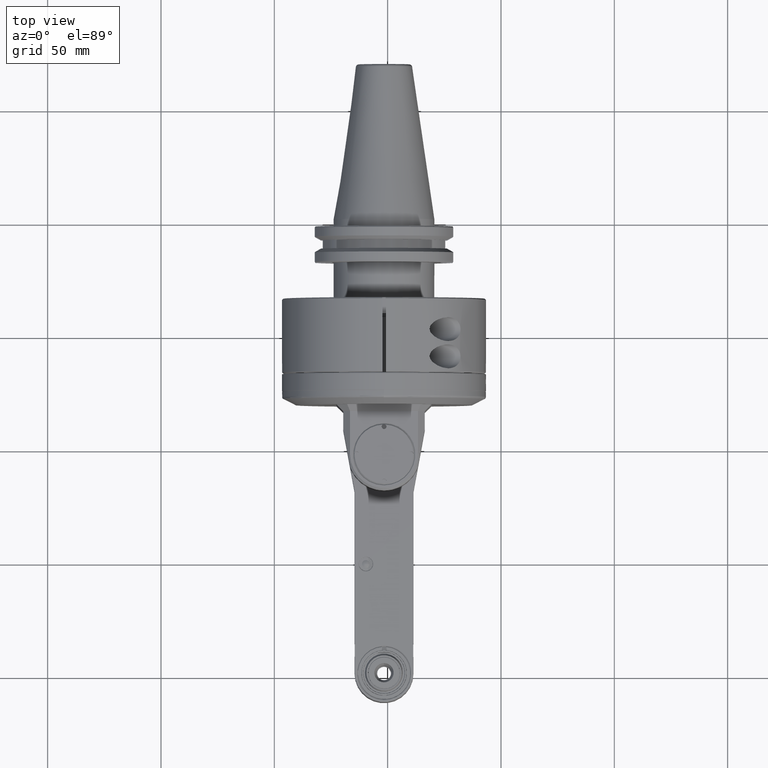
[diagram: clean part render]
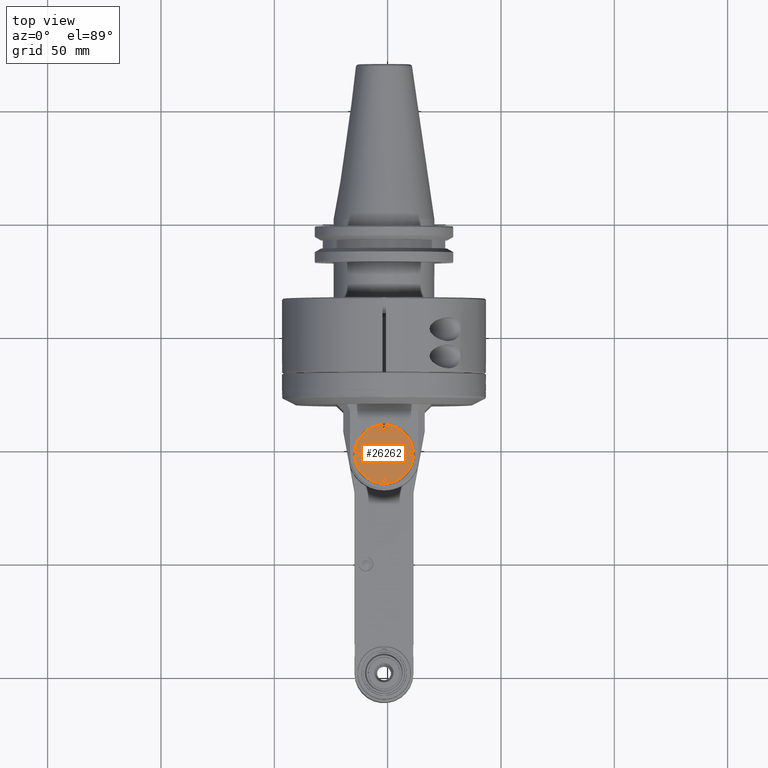
[diagram: same view with one face highlighted and labeled with its STEP entity id]
A machine part, top view. The second image highlights one B-rep face of the part: STEP entity #26262.
In plain terms, the highlighted planar face has unit normal (0, -0, 1).
Its self-contained STEP definition (entity closure, byte-faithful):
#1015=PLANE('',#28457);
#6988=CIRCLE('',#28450,0.511811023622047);
#6989=CIRCLE('',#28451,0.511811023622047);
#6990=CIRCLE('',#28452,0.511811023622047);
#6991=CIRCLE('',#28453,0.511811023622047);
#6992=CIRCLE('',#28455,0.0413385826771654);
#6994=CIRCLE('',#28458,0.0413385826771654);
#6995=CIRCLE('',#28459,0.0413385826771654);
#6996=CIRCLE('',#28460,0.0413385826771654);
#8095=FACE_OUTER_BOUND('',#9732,.T.);
#9732=EDGE_LOOP('',(#20506,#20507,#20508,#20509,#20510,#20511,#20512,#20513));
#12112=VERTEX_POINT('',#43505);
#12113=VERTEX_POINT('',#43512);
#12115=VERTEX_POINT('',#43521);
#12116=VERTEX_POINT('',#43528);
#12118=VERTEX_POINT('',#43537);
#12119=VERTEX_POINT('',#43544);
#12121=VERTEX_POINT('',#43553);
#12122=VERTEX_POINT('',#43560);
#15179=EDGE_CURVE('',#12112,#12113,#6988,.T.);
#15182=EDGE_CURVE('',#12115,#12116,#6989,.T.);
#15185=EDGE_CURVE('',#12118,#12119,#6990,.T.);
#15188=EDGE_CURVE('',#12121,#12122,#6991,.T.);
#15190=EDGE_CURVE('',#12121,#12119,#6992,.T.);
#15193=EDGE_CURVE('',#12118,#12116,#6994,.T.);
#15194=EDGE_CURVE('',#12115,#12113,#6995,.T.);
#15195=EDGE_CURVE('',#12112,#12122,#6996,.T.);
#20506=ORIENTED_EDGE('',*,*,#15188,.F.);
#20507=ORIENTED_EDGE('',*,*,#15190,.T.);
#20508=ORIENTED_EDGE('',*,*,#15185,.F.);
#20509=ORIENTED_EDGE('',*,*,#15193,.T.);
#20510=ORIENTED_EDGE('',*,*,#15182,.F.);
#20511=ORIENTED_EDGE('',*,*,#15194,.T.);
#20512=ORIENTED_EDGE('',*,*,#15179,.F.);
#20513=ORIENTED_EDGE('',*,*,#15195,.T.);
#26262=ADVANCED_FACE('',(#8095),#1015,.T.);
#28450=AXIS2_PLACEMENT_3D('',#43513,#33185,#33186);
#28451=AXIS2_PLACEMENT_3D('',#43529,#33187,#33188);
#28452=AXIS2_PLACEMENT_3D('',#43545,#33189,#33190);
#28453=AXIS2_PLACEMENT_3D('',#43561,#33191,#33192);
#28455=AXIS2_PLACEMENT_3D('',#43569,#33195,#33196);
#28457=AXIS2_PLACEMENT_3D('',#43573,#33200,#33201);
#28458=AXIS2_PLACEMENT_3D('',#43574,#33202,#33203);
#28459=AXIS2_PLACEMENT_3D('',#43575,#33204,#33205);
#28460=AXIS2_PLACEMENT_3D('',#43576,#33206,#33207);
#33185=DIRECTION('center_axis',(0.,0.,-1.));
#33186=DIRECTION('ref_axis',(0.0256349371493391,0.999671371000165,0.));
#33187=DIRECTION('center_axis',(0.,0.,-1.));
#33188=DIRECTION('ref_axis',(0.99967099574858,-0.0256495664493995,0.));
#33189=DIRECTION('center_axis',(0.,0.,-1.));
#33190=DIRECTION('ref_axis',(-0.0256349371493391,-0.999671371000165,0.));
#33191=DIRECTION('center_axis',(0.,0.,-1.));
#33192=DIRECTION('ref_axis',(-0.999670995823973,0.0256495635110093,0.));
#33195=DIRECTION('center_axis',(0.,0.,-1.));
#33196=DIRECTION('ref_axis',(-0.948233618316625,0.317573621533908,0.));
#33200=DIRECTION('center_axis',(0.,0.,1.));
#33201=DIRECTION('ref_axis',(-1.,0.,0.));
#33202=DIRECTION('center_axis',(0.,0.,-1.));
#33203=DIRECTION('ref_axis',(0.,1.,0.));
#33204=DIRECTION('center_axis',(0.,0.,-1.));
#33205=DIRECTION('ref_axis',(-1.,0.,0.));
#33206=DIRECTION('center_axis',(0.,0.,-1.));
#33207=DIRECTION('ref_axis',(0.,-1.,0.));
#43505=CARTESIAN_POINT('',(0.0131181803707364,2.91321768372719,1.14173228346463));
#43512=CARTESIAN_POINT('',(0.51164288057743,2.41469298349139,1.14173228346457));
#43513=CARTESIAN_POINT('Origin',(2.08219213143465E-15,2.40157480314961,
1.14173228346457));
#43521=CARTESIAN_POINT('',(0.511642880577431,2.38845662280782,1.14173228346457));
#43528=CARTESIAN_POINT('',(0.0131181803707535,1.88993192257202,1.14173228346463));
#43529=CARTESIAN_POINT('Origin',(2.08219213143465E-15,2.40157480314961,
1.14173228346457));
#43537=CARTESIAN_POINT('',(-0.0131181803707459,1.88993192257202,1.14173228346463));
#43544=CARTESIAN_POINT('',(-0.511642880577429,2.38845662280782,1.14173228346457));
#43545=CARTESIAN_POINT('Origin',(-1.58394787606299E-15,2.40157480314961,
1.14173228346457));
#43553=CARTESIAN_POINT('',(-0.511642880577425,2.41469298349141,1.14173228346457));
#43560=CARTESIAN_POINT('',(-0.0131181803708259,2.91321768372719,1.14173228346463));
#43561=CARTESIAN_POINT('Origin',(2.08219213143465E-15,2.40157480314961,
1.14173228346457));
#43569=CARTESIAN_POINT('Origin',(-0.47244094488189,2.40157480314961,1.14173228346457));
#43573=CARTESIAN_POINT('Origin',(0.,2.40157480314961,1.14173228346457));
#43574=CARTESIAN_POINT('Origin',(0.,1.92913385826772,1.14173228346457));
#43575=CARTESIAN_POINT('Origin',(0.47244094488189,2.40157480314961,1.14173228346457));
#43576=CARTESIAN_POINT('Origin',(0.,2.8740157480315,1.14173228346457));